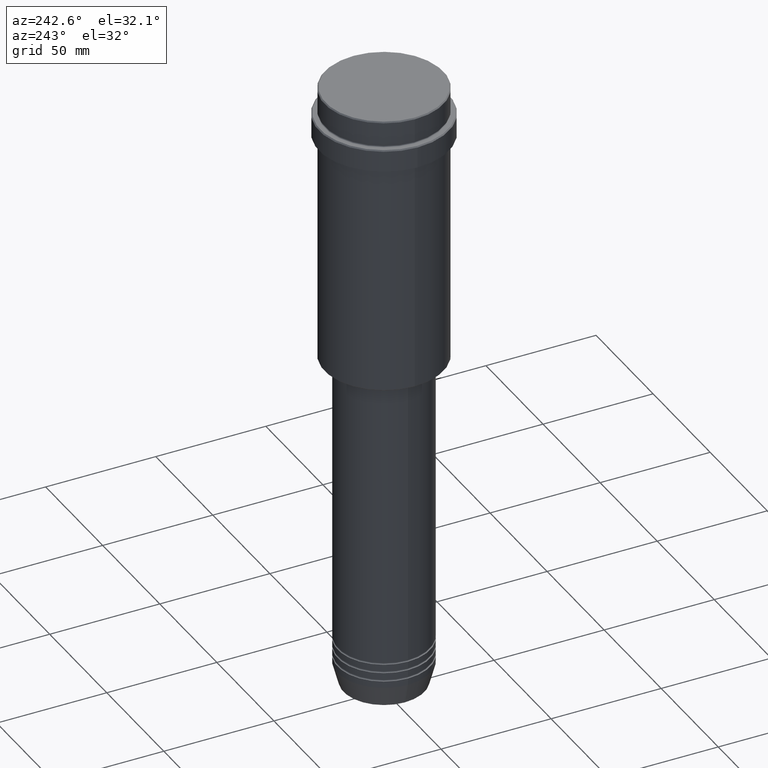
[diagram: clean part render]
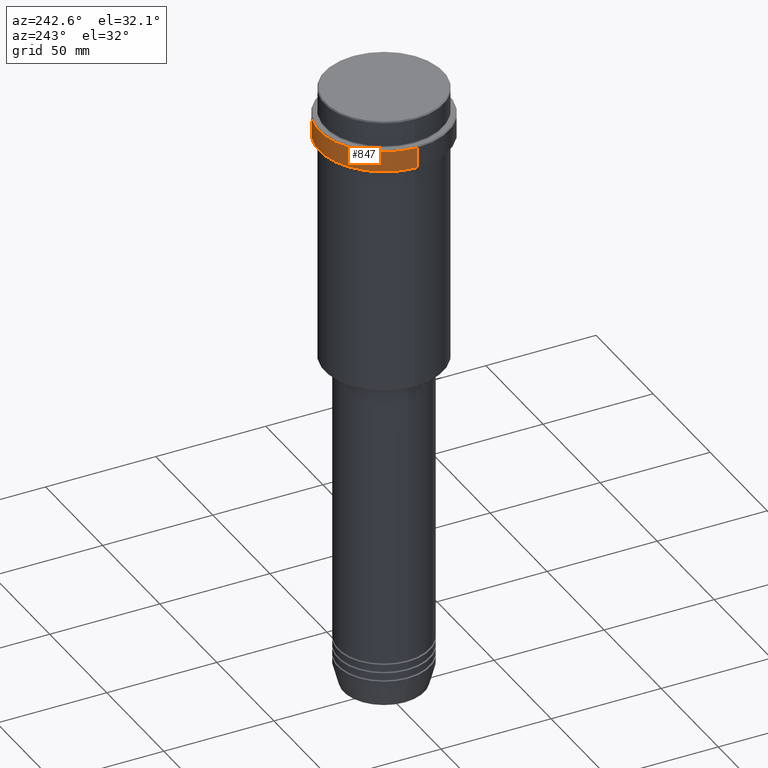
[diagram: same view with one face highlighted and labeled with its STEP entity id]
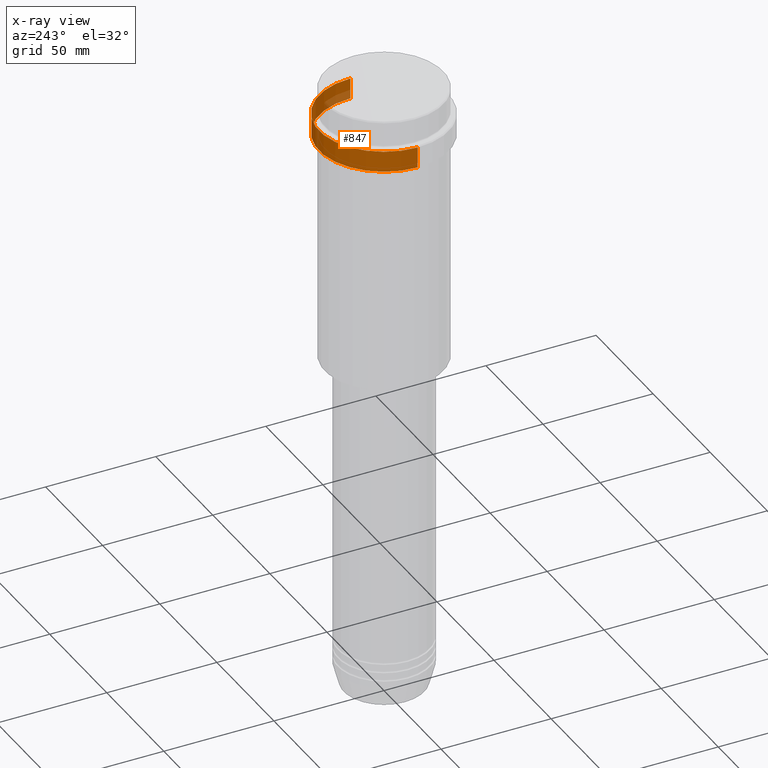
[diagram: x-ray of the same camera — body ghosted, the highlighted face saturated]
A machine part, auxiliary view. The second image highlights one B-rep face of the part: STEP entity #847.
The next image is the same camera in x-ray: the body ghosted, the highlighted face saturated — about 8% of this face is hidden behind the body in this view.
In plain terms, the highlighted cylindrical surface (partial cylindrical patch) has radius 29.5 mm, axis along (-0, -0, 1).
Its self-contained STEP definition (entity closure, byte-faithful):
#26 = DIRECTION ( 'NONE',  ( 1.000000000000000000, 0.000000000000000000, 0.000000000000000000 ) ) ;
#34 = DIRECTION ( 'NONE',  ( -0.000000000000000000, -0.000000000000000000, 1.000000000000000000 ) ) ;
#35 = DIRECTION ( 'NONE',  ( -0.000000000000000000, -0.000000000000000000, 1.000000000000000000 ) ) ;
#63 = VECTOR ( 'NONE', #396, 1000.000000000000000 ) ;
#91 = CARTESIAN_POINT ( 'NONE',  ( 29.50000000000000000, 0.000000000000000000, -12.50000000000000355 ) ) ;
#146 = ORIENTED_EDGE ( 'NONE', *, *, #1144, .T. ) ;
#263 = AXIS2_PLACEMENT_3D ( 'NONE', #574, #34, #26 ) ;
#295 = VERTEX_POINT ( 'NONE', #557 ) ;
#302 = DIRECTION ( 'NONE',  ( 1.000000000000000000, 0.000000000000000000, 0.000000000000000000 ) ) ;
#307 = CARTESIAN_POINT ( 'NONE',  ( -29.50000000000000000, 3.612708057484691604E-15, 0.000000000000000000 ) ) ;
#370 = FACE_OUTER_BOUND ( 'NONE', #1131, .T. ) ;
#396 = DIRECTION ( 'NONE',  ( -0.000000000000000000, -0.000000000000000000, 1.000000000000000000 ) ) ;
#411 = CARTESIAN_POINT ( 'NONE',  ( 0.000000000000000000, 0.000000000000000000, -12.50000000000000355 ) ) ;
#420 = LINE ( 'NONE', #307, #63 ) ;
#433 = VERTEX_POINT ( 'NONE', #1031 ) ;
#453 = AXIS2_PLACEMENT_3D ( 'NONE', #411, #1281, #302 ) ;
#486 = CARTESIAN_POINT ( 'NONE',  ( 29.50000000000000000, 0.000000000000000000, 0.000000000000000000 ) ) ;
#495 = EDGE_CURVE ( 'NONE', #1051, #1416, #1035, .T. ) ;
#557 = CARTESIAN_POINT ( 'NONE',  ( -29.49999999999999645, 3.612708057484690815E-15, -22.00000000000000711 ) ) ;
#574 = CARTESIAN_POINT ( 'NONE',  ( 0.000000000000000000, 0.000000000000000000, 0.000000000000000000 ) ) ;
#658 = EDGE_CURVE ( 'NONE', #433, #1416, #1317, .T. ) ;
#694 = CYLINDRICAL_SURFACE ( 'NONE', #263, 29.50000000000000000 ) ;
#847 = ADVANCED_FACE ( 'NONE', ( #370 ), #694, .T. ) ;
#861 = ORIENTED_EDGE ( 'NONE', *, *, #495, .F. ) ;
#878 = AXIS2_PLACEMENT_3D ( 'NONE', #1078, #1203, #1210 ) ;
#959 = ORIENTED_EDGE ( 'NONE', *, *, #1251, .T. ) ;
#995 = VECTOR ( 'NONE', #35, 1000.000000000000000 ) ;
#1031 = CARTESIAN_POINT ( 'NONE',  ( -29.50000000000000000, 3.612708057484691604E-15, -12.50000000000000355 ) ) ;
#1035 = LINE ( 'NONE', #486, #995 ) ;
#1051 = VERTEX_POINT ( 'NONE', #1176 ) ;
#1078 = CARTESIAN_POINT ( 'NONE',  ( 0.000000000000000000, 0.000000000000000000, -22.00000000000000711 ) ) ;
#1131 = EDGE_LOOP ( 'NONE', ( #959, #146, #1150, #861 ) ) ;
#1144 = EDGE_CURVE ( 'NONE', #295, #433, #420, .T. ) ;
#1150 = ORIENTED_EDGE ( 'NONE', *, *, #658, .T. ) ;
#1176 = CARTESIAN_POINT ( 'NONE',  ( 29.49999999999999645, 0.000000000000000000, -22.00000000000000711 ) ) ;
#1203 = DIRECTION ( 'NONE',  ( -0.000000000000000000, -0.000000000000000000, 1.000000000000000000 ) ) ;
#1210 = DIRECTION ( 'NONE',  ( 1.000000000000000000, 0.000000000000000000, 0.000000000000000000 ) ) ;
#1251 = EDGE_CURVE ( 'NONE', #1051, #295, #1271, .T. ) ;
#1271 = CIRCLE ( 'NONE', #878, 29.49999999999999645 ) ;
#1281 = DIRECTION ( 'NONE',  ( 0.000000000000000000, 0.000000000000000000, -1.000000000000000000 ) ) ;
#1317 = CIRCLE ( 'NONE', #453, 29.50000000000000000 ) ;
#1416 = VERTEX_POINT ( 'NONE', #91 ) ;